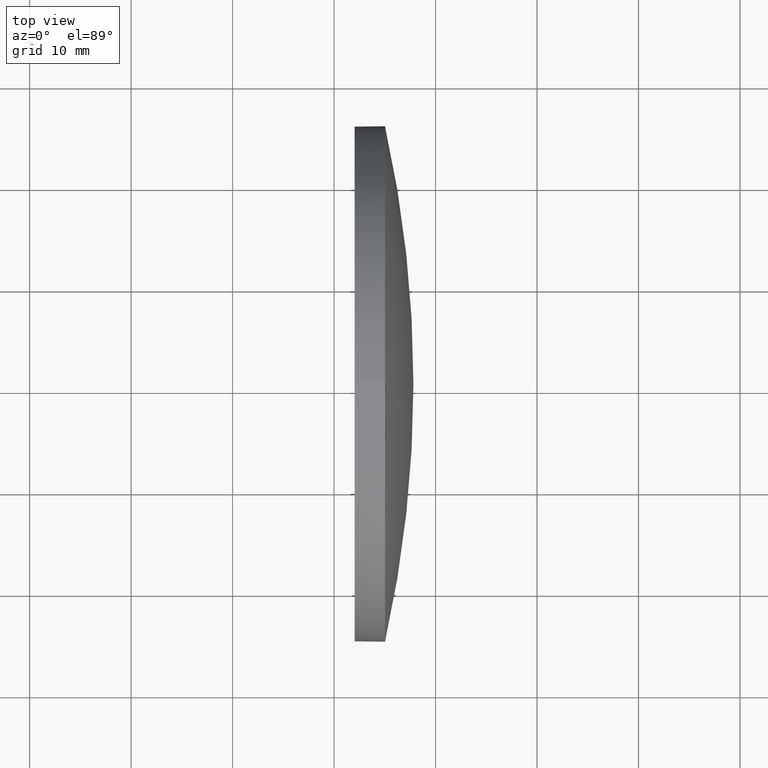
[diagram: clean part render]
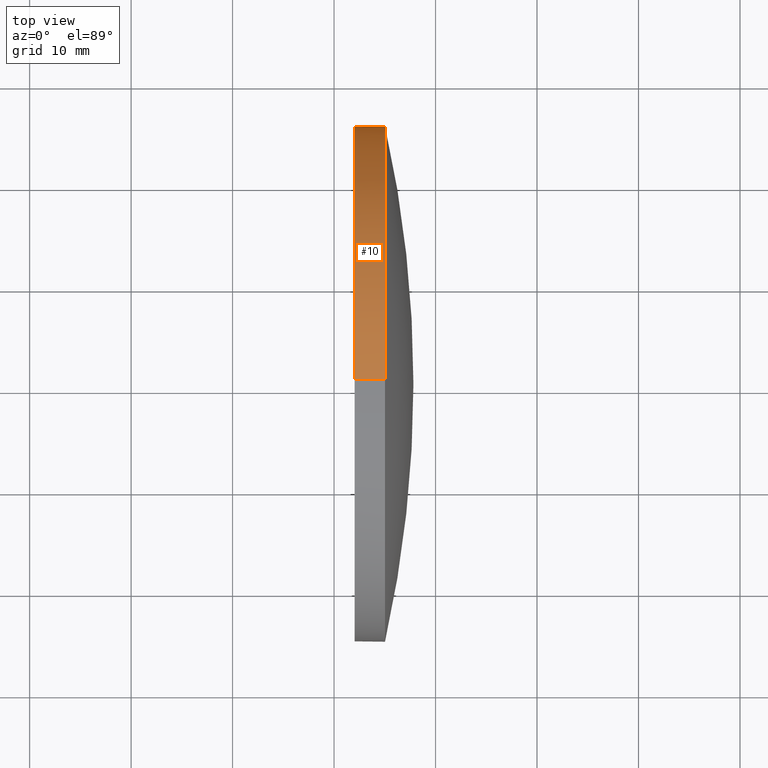
[diagram: same view with one face highlighted and labeled with its STEP entity id]
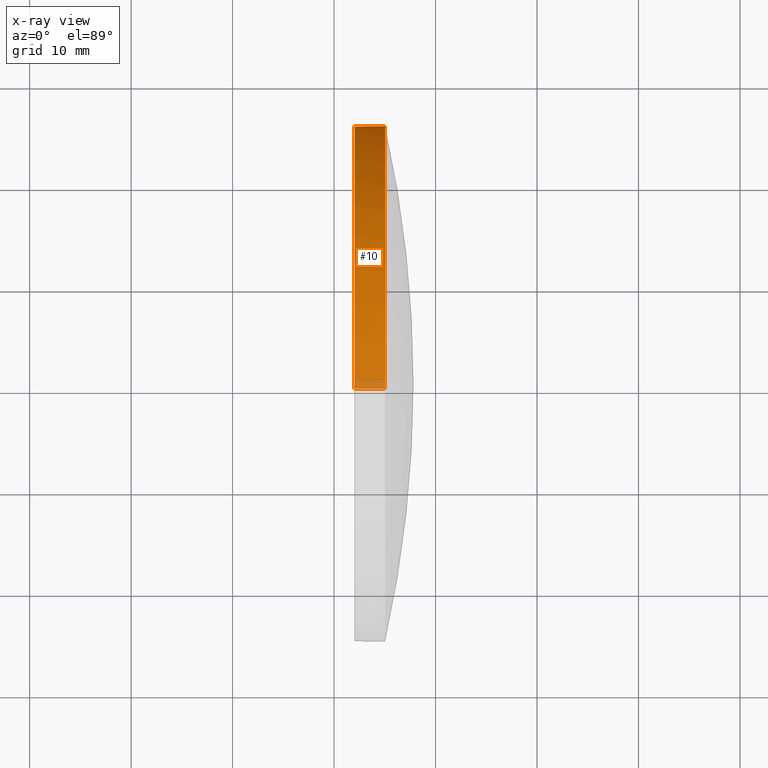
[diagram: x-ray of the same camera — body ghosted, the highlighted face saturated]
A machine part, top view. The second image highlights one B-rep face of the part: STEP entity #10.
The next image is the same camera in x-ray: the body ghosted, the highlighted face saturated — about 3% of this face is hidden behind the body in this view.
In plain terms, the highlighted cylindrical surface (partial cylindrical patch) has radius 25.4 mm, axis along (-1, -0, -0).
Its self-contained STEP definition (entity closure, byte-faithful):
#1 = CIRCLE ( 'NONE', #3, 25.40000000000000600 ) ;
#2 = CARTESIAN_POINT ( 'NONE',  ( 232.0208200792423800, 130.4671098528243900, 0.0000000000000000000 ) ) ;
#3 = AXIS2_PLACEMENT_3D ( 'NONE', #109, #163, #108 ) ;
#10 = ADVANCED_FACE ( 'NONE', ( #133 ), #153, .T. ) ;
#12 = DIRECTION ( 'NONE',  ( -1.000000000000000000, -0.0000000000000000000, -0.0000000000000000000 ) ) ;
#14 = DIRECTION ( 'NONE',  ( 0.0000000000000000000, 0.0000000000000000000, 1.000000000000000000 ) ) ;
#16 = DIRECTION ( 'NONE',  ( -1.000000000000000000, -0.0000000000000000000, -0.0000000000000000000 ) ) ;
#18 = AXIS2_PLACEMENT_3D ( 'NONE', #2, #16, #93 ) ;
#26 = CARTESIAN_POINT ( 'NONE',  ( 220.3307464569769000, 130.4671098528243900, 0.0000000000000000000 ) ) ;
#45 = CARTESIAN_POINT ( 'NONE',  ( 220.3307464569769000, 130.4671098528243900, 25.40000000000000600 ) ) ;
#48 = LINE ( 'NONE', #78, #130 ) ;
#53 = EDGE_CURVE ( 'NONE', #66, #58, #1, .T. ) ;
#58 = VERTEX_POINT ( 'NONE', #186 ) ;
#60 = VECTOR ( 'NONE', #121, 1000.000000000000000 ) ;
#63 = AXIS2_PLACEMENT_3D ( 'NONE', #64, #90, #14 ) ;
#64 = CARTESIAN_POINT ( 'NONE',  ( 235.0208200792423800, 130.4671098528243900, 0.0000000000000000000 ) ) ;
#66 = VERTEX_POINT ( 'NONE', #173 ) ;
#75 = CIRCLE ( 'NONE', #63, 25.40000000000000600 ) ;
#78 = CARTESIAN_POINT ( 'NONE',  ( 220.3307464569769000, 130.4671098528243900, -25.40000000000000600 ) ) ;
#84 = EDGE_CURVE ( 'NONE', #152, #103, #127, .T. ) ;
#90 = DIRECTION ( 'NONE',  ( -1.000000000000000000, -0.0000000000000000000, -0.0000000000000000000 ) ) ;
#93 = DIRECTION ( 'NONE',  ( 0.0000000000000000000, 0.0000000000000000000, 1.000000000000000000 ) ) ;
#100 = AXIS2_PLACEMENT_3D ( 'NONE', #26, #12, #146 ) ;
#101 = VERTEX_POINT ( 'NONE', #140 ) ;
#102 = ORIENTED_EDGE ( 'NONE', *, *, #114, .T. ) ;
#103 = VERTEX_POINT ( 'NONE', #138 ) ;
#107 = DIRECTION ( 'NONE',  ( -1.000000000000000000, -0.0000000000000000000, -0.0000000000000000000 ) ) ;
#108 = DIRECTION ( 'NONE',  ( 0.0000000000000000000, 0.0000000000000000000, 1.000000000000000000 ) ) ;
#109 = CARTESIAN_POINT ( 'NONE',  ( 235.0208200792423800, 130.4671098528243900, 0.0000000000000000000 ) ) ;
#110 = ORIENTED_EDGE ( 'NONE', *, *, #84, .F. ) ;
#114 = EDGE_CURVE ( 'NONE', #58, #101, #75, .T. ) ;
#121 = DIRECTION ( 'NONE',  ( -1.000000000000000000, -0.0000000000000000000, -0.0000000000000000000 ) ) ;
#127 = CIRCLE ( 'NONE', #18, 25.40000000000000600 ) ;
#130 = VECTOR ( 'NONE', #107, 1000.000000000000000 ) ;
#132 = EDGE_CURVE ( 'NONE', #101, #103, #48, .T. ) ;
#133 = FACE_OUTER_BOUND ( 'NONE', #143, .T. ) ;
#136 = CARTESIAN_POINT ( 'NONE',  ( 232.0208200792423800, 130.4671098528243900, 25.40000000000000600 ) ) ;
#138 = CARTESIAN_POINT ( 'NONE',  ( 232.0208200792423800, 130.4671098528243900, -25.40000000000000600 ) ) ;
#140 = CARTESIAN_POINT ( 'NONE',  ( 235.0208200792423800, 130.4671098528243900, -25.40000000000000600 ) ) ;
#142 = EDGE_CURVE ( 'NONE', #66, #152, #179, .T. ) ;
#143 = EDGE_LOOP ( 'NONE', ( #102, #175, #110, #178, #171 ) ) ;
#146 = DIRECTION ( 'NONE',  ( 0.0000000000000000000, 0.0000000000000000000, 1.000000000000000000 ) ) ;
#152 = VERTEX_POINT ( 'NONE', #136 ) ;
#153 = CYLINDRICAL_SURFACE ( 'NONE', #100, 25.40000000000000600 ) ;
#163 = DIRECTION ( 'NONE',  ( -1.000000000000000000, -0.0000000000000000000, -0.0000000000000000000 ) ) ;
#171 = ORIENTED_EDGE ( 'NONE', *, *, #53, .T. ) ;
#173 = CARTESIAN_POINT ( 'NONE',  ( 235.0208200792423800, 130.4671098528243900, 25.40000000000000600 ) ) ;
#175 = ORIENTED_EDGE ( 'NONE', *, *, #132, .T. ) ;
#178 = ORIENTED_EDGE ( 'NONE', *, *, #142, .F. ) ;
#179 = LINE ( 'NONE', #45, #60 ) ;
#186 = CARTESIAN_POINT ( 'NONE',  ( 235.0208200792423800, 155.8671098528243700, 0.0000000000000000000 ) ) ;